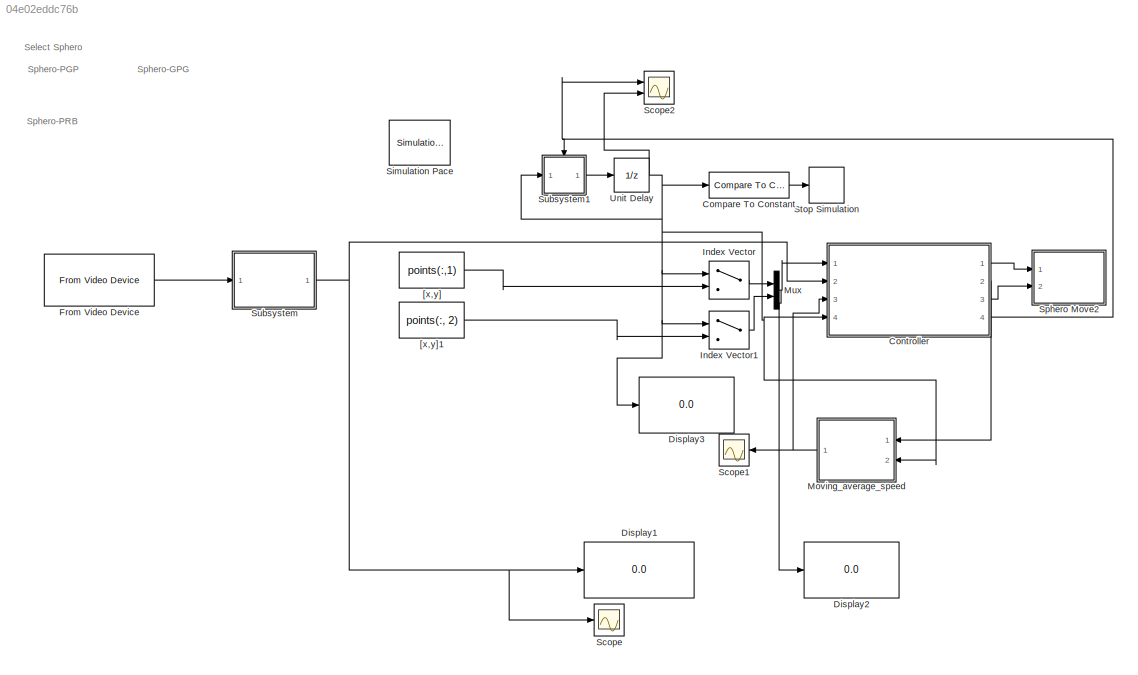
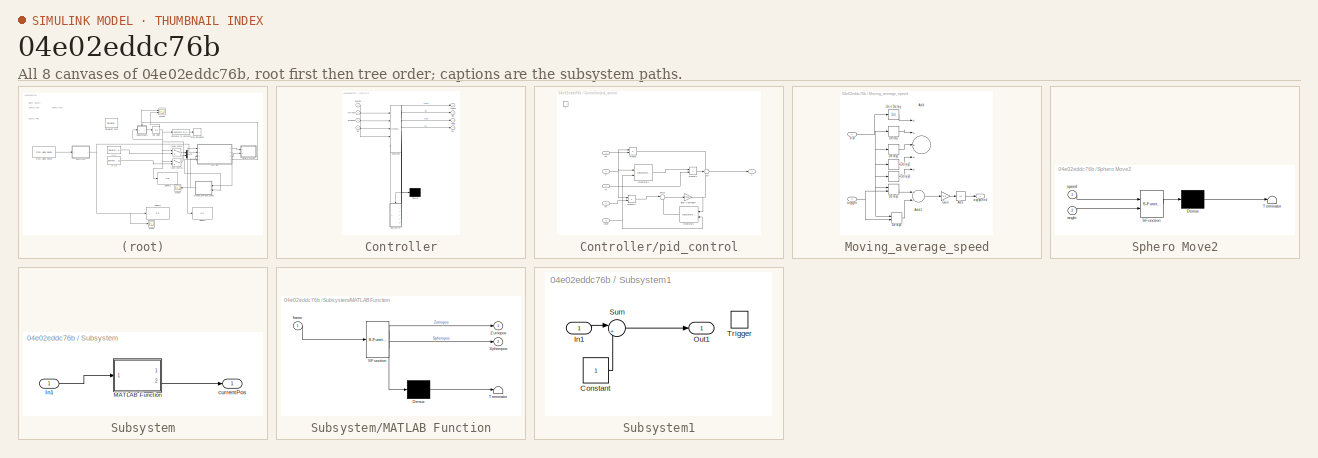
[diagram: thumbnail index - all 8 canvases of the model, root first then tree order]
MODEL slx_04e02eddc76b
KIND model
CONFIG InitFcn = %sphName = uint8('Sphero-PGP');\n\nmove(char(sphName), 0, 0)\n\nrestartspeed = 65; \nstopspeed = 1;\nstopRadius = 50; \nKp = 0.2;\n    Ki = 0;\n    Kd = 0;   \n\npoints = [100, 240; 200, 100; 320, 100; 450, 100; 550, 240];\nnumpoints = size(points, 1);\n\nif ~exist('sph_calibration_angle', 'var')\nsph_calibration_angle = 0;\nend
CONFIG StopFcn = %detectSpheroCVT( 10, 1);\n\nmove(sphName, 0, 0)\nmove(sphName, 0, 0, 0)\n
BLOCK [Reference] Compare To Constant  REF=simulink/Logic and Bit
Operations/Compare
To Constant
  OutDataTypeStr = boolean
  Ports = [1, 1]
  SourceBlock = simulink/Logic and Bit\nOperations/Compare\nTo Constant
  SourceType = Compare To Constant
  ZeroCross = on
  const = numpoints
  relop = >
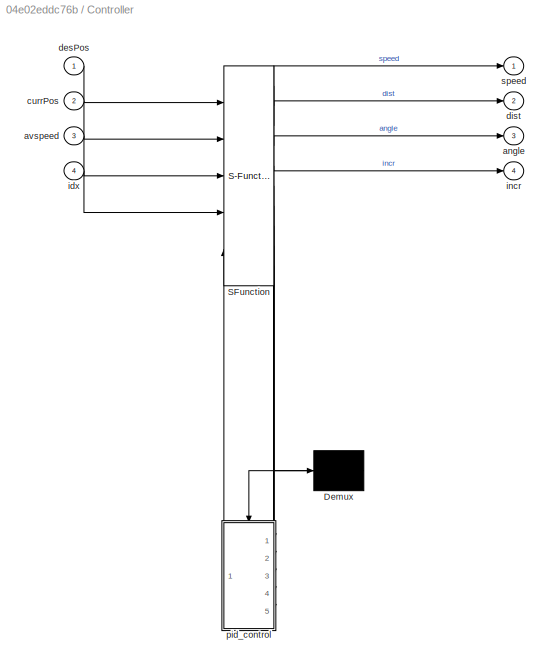
BLOCK [SubSystem] Controller
  ErrorFcn = Stateflow.Translate.translate
  PermitHierarchicalResolution = ExplicitOnly
  Ports = [4, 4]
  RequestExecContextInheritance = off
  SFBlockType = Chart
  TreatAsAtomicUnit = on
BLOCK [Demux] Controller/ Demux 
  Outputs = 1
  Ports = [1, 1]
BLOCK [S-Function] Controller/ SFunction 
  EnableBusSupport = on
  FunctionName = sf_sfun
  Parameters = Kd,Ki,Kp,restartspeed,stopRadius,stopspeed
  PortCounts = [5 10]
  Ports = [5, 10]
  Tag = Stateflow S-Function SpheroControl_CVT2 4
BLOCK [Outport] Controller/angle
  IconDisplay = Port number
  Port = 3
BLOCK [Inport] Controller/avspeed
  IconDisplay = Port number
  Port = 3
BLOCK [Inport] Controller/currPos
  IconDisplay = Port number
  Port = 2
BLOCK [Inport] Controller/desPos
  IconDisplay = Port number
BLOCK [Outport] Controller/dist
  IconDisplay = Port number
  Port = 2
BLOCK [Inport] Controller/idx
  IconDisplay = Port number
  Port = 4
BLOCK [Outport] Controller/incr
  IconDisplay = Port number
  Port = 4
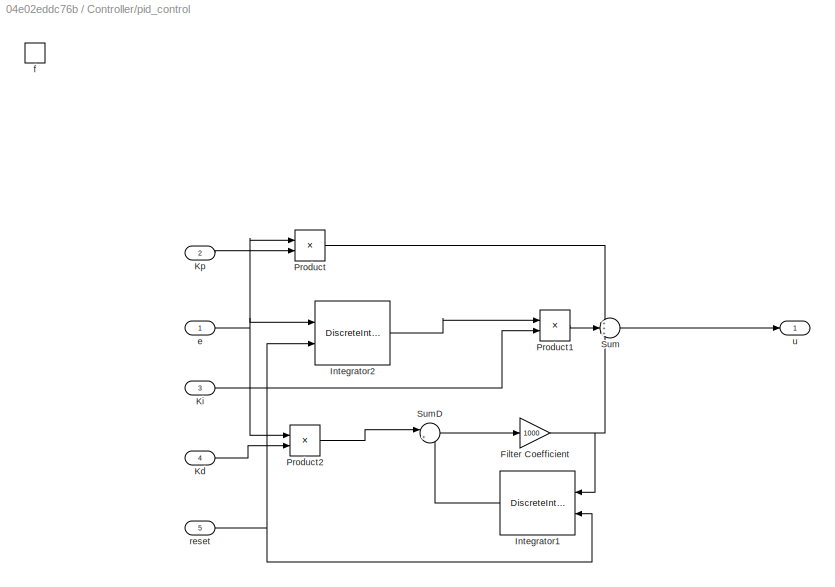
BLOCK [SubSystem] Controller/pid_control
  Ports = [5, 1, 0, 1]
  PreDeleteFcn = Stateflow.SLINSF.SimulinkMan.removePreDeleteFcn
  RequestExecContextInheritance = off
  UndoDeleteFcn = Stateflow.SLINSF.SimulinkMan.restorePreDeleteFcn
BLOCK [Gain] Controller/pid_control/Filter Coefficient
  Gain = 1000
  OutDataTypeStr = Inherit: Inherit via internal rule
  ParamDataTypeStr = Inherit: Inherit via internal rule
  SaturateOnIntegerOverflow = off
BLOCK [DiscreteIntegrator] Controller/pid_control/Integrator1
  ExternalReset = rising
  InitialConditionSetting = State (most efficient)
  IntegratorMethod = Accumulation: Forward Euler
  Ports = [2, 1]
  SampleTime = -1
BLOCK [DiscreteIntegrator] Controller/pid_control/Integrator2
  ExternalReset = rising
  InitialConditionSetting = State (most efficient)
  IntegratorMethod = Accumulation: Forward Euler
  Ports = [2, 1]
  SampleTime = -1
BLOCK [Inport] Controller/pid_control/Kd
  IconDisplay = Port number
  OutDataTypeStr = double
  Port = 4
  PortDimensions = 1
  SignalType = real
  VarSizeSig = No
BLOCK [Inport] Controller/pid_control/Ki
  IconDisplay = Port number
  OutDataTypeStr = double
  Port = 3
  PortDimensions = 1
  SignalType = real
  VarSizeSig = No
BLOCK [Inport] Controller/pid_control/Kp
  IconDisplay = Port number
  OutDataTypeStr = double
  Port = 2
  PortDimensions = 1
  SignalType = real
  VarSizeSig = No
BLOCK [Product] Controller/pid_control/Product
  InputSameDT = off
  OutDataTypeStr = Inherit: Inherit via internal rule
  Ports = [2, 1]
  RndMeth = Floor
  SaturateOnIntegerOverflow = off
BLOCK [Product] Controller/pid_control/Product1
  InputSameDT = off
  OutDataTypeStr = Inherit: Inherit via internal rule
  Ports = [2, 1]
  RndMeth = Floor
  SaturateOnIntegerOverflow = off
BLOCK [Product] Controller/pid_control/Product2
  InputSameDT = off
  OutDataTypeStr = Inherit: Inherit via internal rule
  Ports = [2, 1]
  RndMeth = Floor
  SaturateOnIntegerOverflow = off
BLOCK [Sum] Controller/pid_control/Sum
  IconShape = round
  InputSameDT = off
  Inputs = +++
  OutDataTypeStr = Inherit: Inherit via internal rule
  Ports = [3, 1]
  SaturateOnIntegerOverflow = off
BLOCK [Sum] Controller/pid_control/SumD
  DisableCoverage = on
  IconShape = round
  InputSameDT = off
  Inputs = |+-
  OutDataTypeStr = Inherit: Inherit via internal rule
  Ports = [2, 1]
  SaturateOnIntegerOverflow = off
BLOCK [Inport] Controller/pid_control/e
  IconDisplay = Port number
  OutDataTypeStr = double
  PortDimensions = 1
  SignalType = real
  VarSizeSig = No
BLOCK [TriggerPort] Controller/pid_control/f
  CopyFcn = Stateflow.SLINSF.SimulinkMan.removeBlockPreDeleteFcn
  Ports = []
  PreDeleteFcn = Stateflow.SLINSF.SimulinkMan.unsafePredeleteFcn
  StatesWhenEnabling = held
  TriggerType = function-call
BLOCK [Inport] Controller/pid_control/reset
  IconDisplay = Port number
  OutDataTypeStr = double
  Port = 5
  PortDimensions = 1
  SignalType = real
  VarSizeSig = No
BLOCK [Outport] Controller/pid_control/u
  IconDisplay = Port number
BLOCK [Outport] Controller/speed
  IconDisplay = Port number
BLOCK [Display] Display1
  Decimation = 1
  Ports = [1]
BLOCK [Display] Display2
  Decimation = 1
  Ports = [1]
BLOCK [Display] Display3
  Decimation = 1
  Ports = [1]
BLOCK [Reference] From Video Device  REF=imaqlib/From Video Device
  AllMetadata = IsPositionTracked;IsSkeletonTracked;JointDepthIndices;JointImageIndices;JointTrackingState;JointWorldCoordinates;PositionDepthIndices;PositionImageIndices;PositionWorldCoordinates;SegmentationData;SkeletonTrackingID
  BayerSensorAlignment = grbg
  BlockHandle = 1921.0006
  CanDoHWTrigger = no
  DataType = single
  DevXMLPath = <path>
  Device = winvideo 1 (Microsoft LifeCam Cinema)
  DeviceMenu = demo 1 (Color Device)
  EnableHWTrigger = off
  EngLibPath = <path>
  EngXMLPath = <path>
  ObjConstructor = videoinput('winvideo', 1)
  OutputPortsMode = One multidimensional signal
  Ports = [0, 1]
  ROIColumn = 0
  ROIHeight = 480
  ROIPosition = [0 0 480 640]
  ROIRow = 0
  ROIWidth = 640
  ReturnedColorSpace = rgb
  SampleTime = 0.2
  SourceBlock = imaqlib/From Video Device
  SourceType = From Video Device
  TriggerConfiguration = none/none
  UserDataPersistent = on
  VideoFormat = MJPG_640x480
  VideoFormatMenu = RGB_NTSC
  VideoSource = input1
BLOCK [MultiPortSwitch] Index Vector
  InputSameDT = off
  Inputs = 1
  Ports = [2, 1]
  SaturateOnIntegerOverflow = off
BLOCK [MultiPortSwitch] Index Vector1
  InputSameDT = off
  Inputs = 1
  Ports = [2, 1]
  SaturateOnIntegerOverflow = off
BLOCK [SubSystem] Moving_average_speed
  Ports = [2, 1]
  RequestExecContextInheritance = off
BLOCK [Abs] Moving_average_speed/Abs
  SaturateOnIntegerOverflow = off
BLOCK [Sum] Moving_average_speed/Add
  Commented = on
  InputSameDT = off
  Inputs = +++++
  OutDataTypeStr = Inherit: Inherit via internal rule
  Ports = [5, 1]
  SaturateOnIntegerOverflow = off
BLOCK [Sum] Moving_average_speed/Add1
  InputSameDT = off
  Inputs = +-
  OutDataTypeStr = Inherit: Inherit via internal rule
  Ports = [2, 1]
  SaturateOnIntegerOverflow = off
BLOCK [Delay] Moving_average_speed/Delay
  Commented = on
  InputPortMap = u0
  Ports = [1, 1]
BLOCK [Delay] Moving_average_speed/Delay1
  Commented = on
  DelayLength = 3
  InputPortMap = u0
  Ports = [1, 1]
BLOCK [Delay] Moving_average_speed/Delay2
  Commented = on
  DelayLength = 4
  InputPortMap = u0
  Ports = [1, 1]
BLOCK [Delay] Moving_average_speed/Delay3
  Commented = on
  DelayLength = 5
  InputPortMap = u0
  Ports = [1, 1]
BLOCK [Delay] Moving_average_speed/Delay4
  DelayLength = 6
  ExternalReset = Rising
  InputPortMap = u0,r5
  Ports = [2, 1]
BLOCK [Delay] Moving_average_speed/Delay5
  DelayLength = 1
  ExternalReset = Rising
  InputPortMap = u0,r5
  Ports = [2, 1]
BLOCK [Gain] Moving_average_speed/Gain
  Gain = 1/5
  OutDataTypeStr = Inherit: Inherit via internal rule
  ParamDataTypeStr = Inherit: Inherit via internal rule
  SaturateOnIntegerOverflow = off
BLOCK [UnitDelay] Moving_average_speed/Unit Delay
  Commented = on
  InputProcessing = Elements as channels (sample based)
  SampleTime = -1
BLOCK [Outport] Moving_average_speed/avgspeed
  IconDisplay = Port number
BLOCK [Inport] Moving_average_speed/dist
  IconDisplay = Port number
BLOCK [Inport] Moving_average_speed/trigger
  IconDisplay = Port number
  Port = 2
BLOCK [Mux] Mux
  DisplayOption = bar
  Inputs = 2
  Ports = [2, 1]
BLOCK [Scope] Scope
  DataFormat = StructureWithTime
  Floating = off
  LimitDataPoints = off
  NumInputPorts = 1
  Ports = [1]
  SaveName = SpheroPos
  SaveToWorkspace = on
  ShowLegends = off
BLOCK [Scope] Scope1
  DataFormat = StructureWithTime
  Floating = off
  LimitDataPoints = off
  NumInputPorts = 1
  Ports = [1]
  SaveName = movingAvg
  SaveToWorkspace = on
  ShowLegends = off
BLOCK [Scope] Scope2
  DataFormat = StructureWithTime
  Floating = off
  LimitDataPoints = off
  NumInputPorts = 2
  Ports = [2]
  SaveName = movingAvg1
  SaveToWorkspace = on
  ShowLegends = off
  YMax = 5~5
  YMin = -5~-5
BLOCK [Reference] Simulation Pace  REF=aerolibanimutils/Simulation Pace
  AttributesFormatString = %<SimulationPace> sec/sec
  OutputPaceError = off
  Ports = []
  SampleTime = -1
  SimulationPace = 1
  SleepMode = MATLAB Thread
  SourceBlock = aerolibanimutils/Simulation Pace
  SourceType = Simulation Pace
BLOCK [SubSystem] Sphero Move2
  ErrorFcn = Stateflow.Translate.translate
  PermitHierarchicalResolution = ExplicitOnly
  Ports = [2]
  RequestExecContextInheritance = off
  SFBlockType = MATLAB Function
  TreatAsAtomicUnit = on
BLOCK [Demux] Sphero Move2/ Demux 
  Outputs = 1
  Ports = [1, 1]
BLOCK [S-Function] Sphero Move2/ SFunction 
  EnableBusSupport = on
  FunctionName = sf_sfun
  Parameters = sphName,sph_calibration_angle
  PortCounts = [2 1]
  Ports = [2, 1]
  Tag = Stateflow S-Function SpheroControl_CVT2 5
BLOCK [Terminator] Sphero Move2/ Terminator 
BLOCK [Inport] Sphero Move2/angle
  IconDisplay = Port number
  Port = 2
BLOCK [Inport] Sphero Move2/speed
  IconDisplay = Port number
BLOCK [Stop] Stop Simulation
BLOCK [SubSystem] Subsystem
  Ports = [1, 1]
  RequestExecContextInheritance = off
BLOCK [Inport] Subsystem/In1
  IconDisplay = Port number
BLOCK [SubSystem] Subsystem/MATLAB Function
  ErrorFcn = Stateflow.Translate.translate
  PermitHierarchicalResolution = ExplicitOnly
  Ports = [1, 2]
  RequestExecContextInheritance = off
  SFBlockType = MATLAB Function
  TreatAsAtomicUnit = on
BLOCK [Demux] Subsystem/MATLAB Function/ Demux 
  Outputs = 1
  Ports = [1, 1]
BLOCK [S-Function] Subsystem/MATLAB Function/ SFunction 
  EnableBusSupport = on
  FunctionName = sf_sfun
  PortCounts = [1 3]
  Ports = [1, 3]
  Tag = Stateflow S-Function SpheroControl_CVT2 2
BLOCK [Terminator] Subsystem/MATLAB Function/ Terminator 
BLOCK [Outport] Subsystem/MATLAB Function/Spheropos
  IconDisplay = Port number
  Port = 2
BLOCK [Outport] Subsystem/MATLAB Function/Zumopos
  IconDisplay = Port number
BLOCK [Inport] Subsystem/MATLAB Function/frame
  IconDisplay = Port number
BLOCK [Outport] Subsystem/currentPos
  IconDisplay = Port number
BLOCK [SubSystem] Subsystem1
  Ports = [1, 1, 0, 1]
  RequestExecContextInheritance = off
BLOCK [Constant] Subsystem1/Constant
BLOCK [Inport] Subsystem1/In1
  IconDisplay = Port number
BLOCK [Outport] Subsystem1/Out1
  IconDisplay = Port number
  InitialOutput = 1
BLOCK [Sum] Subsystem1/Sum
  IconShape = round
  InputSameDT = off
  Inputs = |++
  OutDataTypeStr = Inherit: Inherit via internal rule
  Ports = [2, 1]
  SaturateOnIntegerOverflow = off
BLOCK [TriggerPort] Subsystem1/Trigger
  PortDimensions = 1
  Ports = []
  StatesWhenEnabling = held
BLOCK [UnitDelay] Unit Delay
  InitialCondition = 1
  InputProcessing = Elements as channels (sample based)
  SampleTime = -1
BLOCK [Constant] [x,y]
  Value = points(:,1)
BLOCK [Constant] [x,y]1
  Value = points(:, 2)
ANNOTATION (root): Select Sphero
ANNOTATION (root): Sphero-GPG
ANNOTATION (root): Sphero-PGP
ANNOTATION (root): Sphero-PRB
LINE Compare To Constant:1 -> Stop Simulation:1
LINE Controller:1 -> Sphero Move2:1
LINE Controller:2 -> Moving_average_speed:1
LINE Controller:3 -> Sphero Move2:2
NET Controller:4 -> Scope2:1, Subsystem1:trigger
LINE From Video Device:1 -> Subsystem:1
LINE Index Vector1:1 -> Mux:2
LINE Index Vector:1 -> Mux:1
LINE Moving_average_speed/Abs:1 -> Moving_average_speed/avgspeed:1
LINE Moving_average_speed/Add1:1 -> Moving_average_speed/Gain:1
LINE Moving_average_speed/Delay1:1 -> Moving_average_speed/Add:3
LINE Moving_average_speed/Delay2:1 -> Moving_average_speed/Add:4
LINE Moving_average_speed/Delay3:1 -> Moving_average_speed/Add:5
LINE Moving_average_speed/Delay4:1 -> Moving_average_speed/Add1:2
LINE Moving_average_speed/Delay5:1 -> Moving_average_speed/Add1:1
LINE Moving_average_speed/Delay:1 -> Moving_average_speed/Add:2
LINE Moving_average_speed/Gain:1 -> Moving_average_speed/Abs:1
LINE Moving_average_speed/Unit Delay:1 -> Moving_average_speed/Add:1
NET Moving_average_speed/dist:1 -> Moving_average_speed/Delay1:1, Moving_average_speed/Delay2:1, Moving_average_speed/Delay3:1, Moving_average_speed/Delay4:1, Moving_average_speed/Delay5:1, Moving_average_speed/Delay:1, Moving_average_speed/Unit Delay:1
NET Moving_average_speed/trigger:1 -> Moving_average_speed/Delay4:2, Moving_average_speed/Delay5:2
NET Moving_average_speed:1 -> Controller:3, Scope1:1
NET Mux:1 -> Controller:1, Display2:1
LINE Subsystem/In1:1 -> Subsystem/MATLAB Function:1
LINE Subsystem/MATLAB Function:2 -> Subsystem/currentPos:1
LINE Subsystem1/Constant:1 -> Subsystem1/Sum:2
LINE Subsystem1/In1:1 -> Subsystem1/Sum:1
LINE Subsystem1/Sum:1 -> Subsystem1/Out1:1
LINE Subsystem1:1 -> Unit Delay:1
NET Subsystem:1 -> Controller:2, Display1:1, Scope:1
NET Unit Delay:1 -> Compare To Constant:1, Controller:4, Display3:1, Index Vector1:1, Index Vector:1, Moving_average_speed:2, Scope2:2, Subsystem1:1
LINE [x,y]1:1 -> Index Vector1:2
LINE [x,y]:1 -> Index Vector:2
note: NET lines group one-source signal fan-out (src -> all destinations, sorted); 1:1 wires keep LINE
CHART Subsystem/MATLAB Function states=1 transitions=1
  STATE_LABEL 'eML_blk_kernel()'
  STATE_LABEL "SCRIPT:\nfunction [Zumopos, Spheropos] = fcn(frame)\n%#codegen\npersistent init\n\ncoder.extrinsic('detectMinions2')\n\nZumopos = single([0 0]);\nSpheropos = [0; 0];\n\nif isempty(init)\n    [Zumopos, Spheropos] = detectMinions2(frame, 1);\n    init = 1;\nelse\n    [Zumopos, Spheropostemp] = detectMinions2(frame);\n    Spheropos = Spheropostemp';\nend\n\n\n\n\n\n\n"
CHART Controller states=7 transitions=7
  STATE_LABEL 'Control'
  STATE_LABEL 'Motion\nen, du: speed = pid_control(dist, Kp, Ki, Kd, idx);'
  STATE_LABEL 'Stop\nen: incr = 1;\nen, du: speed = 0;\nex: incr = 0;'
  STATE_LABEL 'Restart\nen, du: speed = restartspeed;'
  STATE_LABEL '{incr = 0;}'
  STATE_LABEL '[dist>stopRadius]'
  STATE_LABEL '[dist<stopRadius]'
  STATE_LABEL '[avspeed>stopspeed]'
  STATE_LABEL '[avspeed<stopspeed]'
  STATE_LABEL '[dist<stopRadius]'
  STATE_LABEL '[avspeed<stopspeed && dist>stopRadius]'
  STATE_LABEL 'Motion\nen, du: speed = pid_control(dist, Kp, Ki, Kd, idx);'
  STATE_LABEL 'Stop\nen: incr = 1;\nen, du: speed = 0;\nex: incr = 0;'
  STATE_LABEL 'Restart\nen, du: speed = restartspeed;'
  STATE_LABEL 'ComputeDist\n\nen, du: [dist, angle] = relativePos(desPos, currPos);\n'
  STATE_LABEL '[distance, angleOut] = relativePos(desiredPos, currentPos)'
  STATE_LABEL "SCRIPT:\nfunction [distance, angleOut] = relativePos(desiredPos, currentPos)\n\ncoder.extrinsic('radtodeg', 'pdist')\ndistance = 0;\nangleOut = 0;\n\nif currPos(1)<0 || currPos(2)<0\n    \n    return\nend\n%% Angle and distance calculation\n \n    %Angle of desired position wrt y axis (or orientation of sphero)\n    angleOut = atan2(desiredPos(1)-currentPos(1), desiredPos(2)-currentPos(2));\n\n    if angleOut<0\n ...<+192ch>"
  STATE_LABEL 'u = pid_control(e,Kp,Ki,Kd,reset)'
CHART Sphero Move2 states=1 transitions=1
  STATE_LABEL 'eML_blk_kernel()'
  STATE_LABEL "SCRIPT:\nfunction fcn(speed, angle, sphName, sph_calibration_angle)\n%#codegen\ncoder.extrinsic('move')\n\nmove(char(sphName), speed, angle-sph_calibration_angle);\n"
note: 3 file-system paths scrubbed to <path> (not preserved elsewhere — flat text is the only slx artifact)
